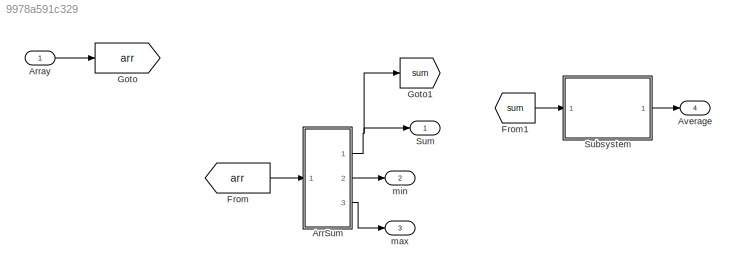
MODEL slx_9978a591c329
KIND model
CONFIG AbsTol = auto
CONFIG EnableMultiTasking = off
CONFIG FixedStep = auto
CONFIG MaxStep = auto
CONFIG MinStep = auto
CONFIG RelTol = 1e-3
CONFIG SampleTimeConstraint = Unconstrained
CONFIG SolverName = VariableStepAuto
CONFIG StartTime = 0.0
CONFIG StopTime = 10.0
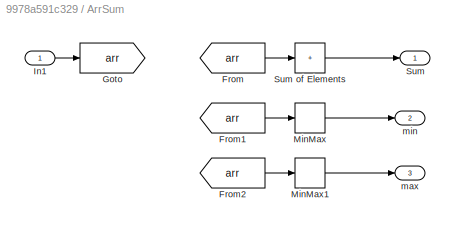
BLOCK [SubSystem] ArrSum
  Ports = [1, 3]
  RequestExecContextInheritance = off
BLOCK [From] ArrSum/From
  GotoTag = arr
BLOCK [From] ArrSum/From1
  GotoTag = arr
BLOCK [From] ArrSum/From2
  GotoTag = arr
BLOCK [Goto] ArrSum/Goto
  GotoTag = arr
BLOCK [Inport] ArrSum/In1
BLOCK [MinMax] ArrSum/MinMax
  Ports = [1, 1]
BLOCK [MinMax] ArrSum/MinMax1
  Function = max
  Ports = [1, 1]
BLOCK [Outport] ArrSum/Sum
BLOCK [Sum] ArrSum/Sum of Elements
  IconShape = rectangular
  Inputs = +
  Ports = [1, 1]
BLOCK [Outport] ArrSum/max
  Port = 3
BLOCK [Outport] ArrSum/min
  Port = 2
BLOCK [Inport] Array
  PortDimensions = 10
BLOCK [Outport] Average
  Port = 4
BLOCK [From] From
  GotoTag = arr
BLOCK [From] From1
  GotoTag = sum
BLOCK [Goto] Goto
  GotoTag = arr
BLOCK [Goto] Goto1
  GotoTag = sum
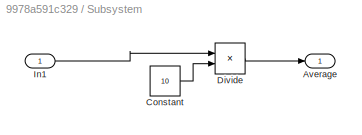
BLOCK [SubSystem] Subsystem
  Ports = [1, 1]
  RequestExecContextInheritance = off
BLOCK [Outport] Subsystem/Average
BLOCK [Constant] Subsystem/Constant
  Value = 10
BLOCK [Product] Subsystem/Divide
  Inputs = */
  Ports = [2, 1]
BLOCK [Inport] Subsystem/In1
BLOCK [Outport] Sum
BLOCK [Outport] max
  Port = 3
BLOCK [Outport] min
  Port = 2
LINE ArrSum/From1:1 -> ArrSum/MinMax:1
LINE ArrSum/From2:1 -> ArrSum/MinMax1:1
LINE ArrSum/From:1 -> ArrSum/Sum of Elements:1
LINE ArrSum/In1:1 -> ArrSum/Goto:1
LINE ArrSum/MinMax1:1 -> ArrSum/max:1
LINE ArrSum/MinMax:1 -> ArrSum/min:1
LINE ArrSum/Sum of Elements:1 -> ArrSum/Sum:1
NET ArrSum:1 -> Goto1:1, Sum:1
LINE ArrSum:2 -> min:1
LINE ArrSum:3 -> max:1
LINE Array:1 -> Goto:1
LINE From1:1 -> Subsystem:1
LINE From:1 -> ArrSum:1
LINE Subsystem/Constant:1 -> Subsystem/Divide:2
LINE Subsystem/Divide:1 -> Subsystem/Average:1
LINE Subsystem/In1:1 -> Subsystem/Divide:1
LINE Subsystem:1 -> Average:1
note: NET lines group one-source signal fan-out (src -> all destinations, sorted); 1:1 wires keep LINE
